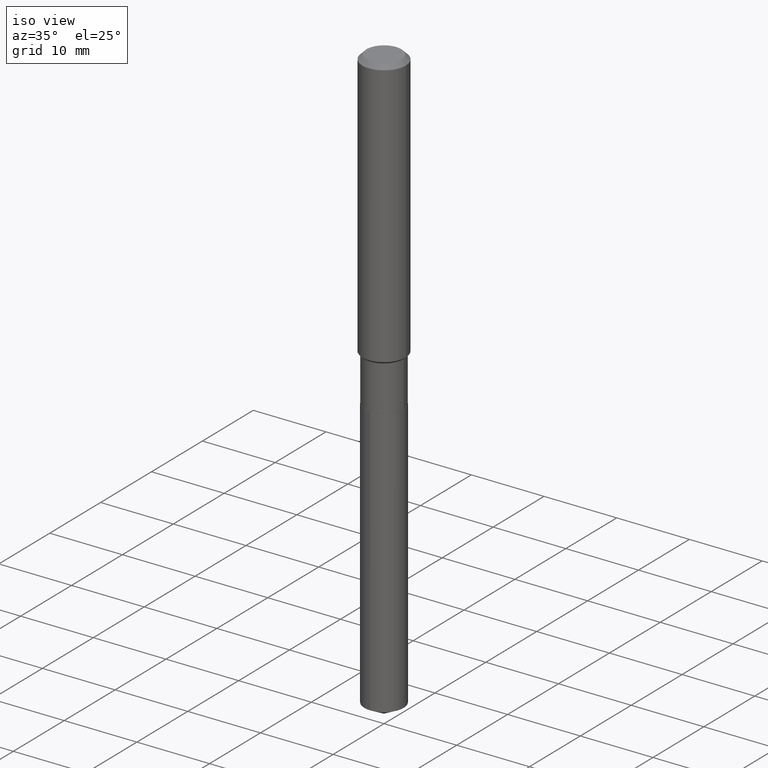
[diagram: clean part render]
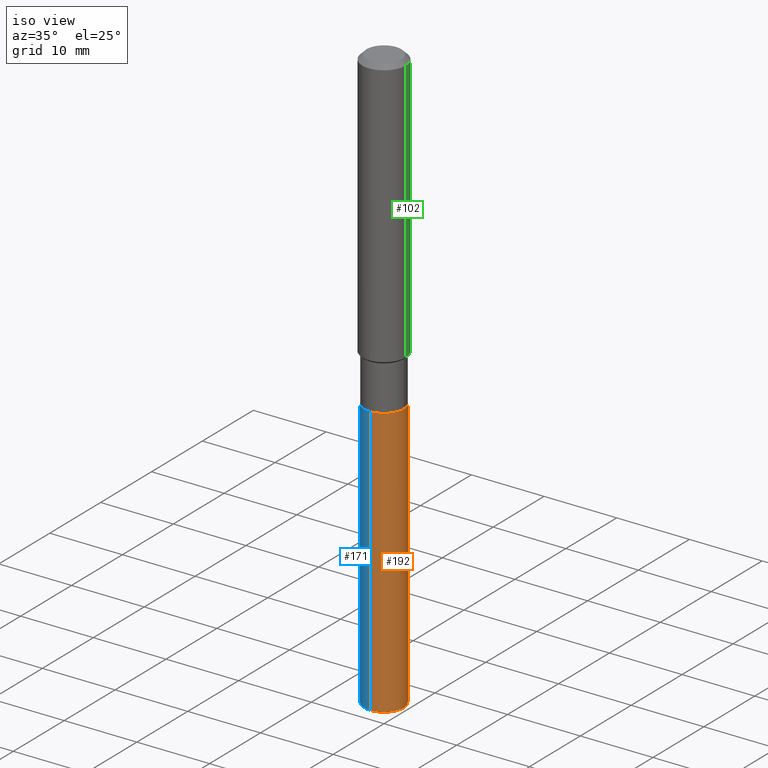
[diagram: same view with three faces highlighted in distinct colors, each labeled with its STEP entity id]
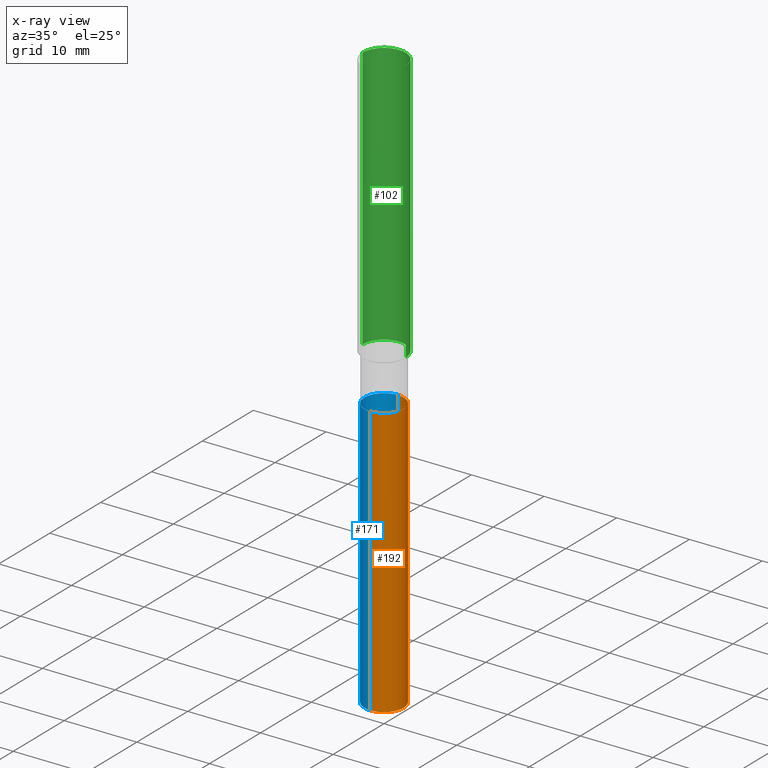
[diagram: x-ray of the same camera — body ghosted, the three highlighted faces saturated]
A machine part, iso view with three faces highlighted in distinct colors.
The next image is the same camera in x-ray (body ghosted, the three faces saturated) — at least one of them is partly hidden behind the body in this view.
Their STEP definitions:

[orange] entity #192 — the highlighted cylindrical surface (edge-blend (fillet) strip) has radius 2.7 mm, axis along (-0, 0, 1).
#26 = CARTESIAN_POINT ( 'NONE',  ( -7.422889326380084277E-16, -0.1063000000000059592, -1.708599999999999897 ) ) ;
#29 = CIRCLE ( 'NONE', #363, 0.1063000000000000056 ) ;
#30 = CARTESIAN_POINT ( 'NONE',  ( 4.178328002247924925E-29, -5.965545015547399442E-15, -1.708600000000000119 ) ) ;
#31 = VERTEX_POINT ( 'NONE', #26 ) ;
#43 = DIRECTION ( 'NONE',  ( -2.445509504775063529E-29, 3.491423056145950316E-15, 1.000000000000000000 ) ) ;
#97 = ORIENTED_EDGE ( 'NONE', *, *, #160, .F. ) ;
#105 = CYLINDRICAL_SURFACE ( 'NONE', #353, 0.1063000000000000056 ) ;
#107 = VERTEX_POINT ( 'NONE', #447 ) ;
#115 = FACE_OUTER_BOUND ( 'NONE', #390, .T. ) ;
#120 = ORIENTED_EDGE ( 'NONE', *, *, #193, .T. ) ;
#148 = CARTESIAN_POINT ( 'NONE',  ( 7.553069281130638457E-16, 0.1062999999999889034, -3.171779287414385973 ) ) ;
#151 = DIRECTION ( 'NONE',  ( -6.982962677686265922E-15, -1.000000000000000000, 2.569941668545873170E-15 ) ) ;
#160 = EDGE_CURVE ( 'NONE', #107, #31, #366, .T. ) ;
#187 = CARTESIAN_POINT ( 'NONE',  ( 7.756546856809809228E-29, -1.107412291490118614E-14, -3.171779287414385529 ) ) ;
#192 = ADVANCED_FACE ( 'NONE', ( #115 ), #105, .T. ) ;
#193 = EDGE_CURVE ( 'NONE', #434, #242, #405, .T. ) ;
#222 = CIRCLE ( 'NONE', #299, 0.1063000000000000056 ) ;
#223 = DIRECTION ( 'NONE',  ( -2.445509504775063809E-29, 3.491423056145949921E-15, 1.000000000000000000 ) ) ;
#242 = VERTEX_POINT ( 'NONE', #457 ) ;
#255 = DIRECTION ( 'NONE',  ( -6.982962677686265922E-15, -1.000000000000000000, 5.139883337091746339E-15 ) ) ;
#258 = CARTESIAN_POINT ( 'NONE',  ( -7.422889326380084277E-16, -0.1063000000000059592, -1.708599999999999897 ) ) ;
#295 = DIRECTION ( 'NONE',  ( -6.982962677686265922E-15, -1.000000000000000000, 2.569941668545873170E-15 ) ) ;
#298 = VECTOR ( 'NONE', #223, 39.37007874015748143 ) ;
#299 = AXIS2_PLACEMENT_3D ( 'NONE', #187, #347, #255 ) ;
#309 = VECTOR ( 'NONE', #345, 39.37007874015748143 ) ;
#345 = DIRECTION ( 'NONE',  ( -2.445509504775063809E-29, 3.491423056145949921E-15, 1.000000000000000000 ) ) ;
#347 = DIRECTION ( 'NONE',  ( -2.445509504775063529E-29, 3.491423056145950316E-15, 1.000000000000000000 ) ) ;
#353 = AXIS2_PLACEMENT_3D ( 'NONE', #30, #484, #295 ) ;
#363 = AXIS2_PLACEMENT_3D ( 'NONE', #411, #43, #151 ) ;
#366 = LINE ( 'NONE', #258, #309 ) ;
#382 = EDGE_CURVE ( 'NONE', #31, #242, #29, .T. ) ;
#390 = EDGE_LOOP ( 'NONE', ( #428, #120, #474, #97 ) ) ;
#405 = LINE ( 'NONE', #413, #298 ) ;
#411 = CARTESIAN_POINT ( 'NONE',  ( 4.178328002247924925E-29, -5.965545015547399442E-15, -1.708600000000000119 ) ) ;
#413 = CARTESIAN_POINT ( 'NONE',  ( 7.553069281130281498E-16, 0.1062999999999940520, -1.708600000000000563 ) ) ;
#428 = ORIENTED_EDGE ( 'NONE', *, *, #473, .T. ) ;
#434 = VERTEX_POINT ( 'NONE', #148 ) ;
#447 = CARTESIAN_POINT ( 'NONE',  ( -7.422889326379726331E-16, -0.1063000000000110662, -3.171779287414385085 ) ) ;
#457 = CARTESIAN_POINT ( 'NONE',  ( 7.553069281130643387E-16, 0.1062999999999940659, -1.708600000000000563 ) ) ;
#473 = EDGE_CURVE ( 'NONE', #107, #434, #222, .T. ) ;
#474 = ORIENTED_EDGE ( 'NONE', *, *, #382, .F. ) ;
#484 = DIRECTION ( 'NONE',  ( -2.445509504775063529E-29, 3.491423056145950316E-15, 1.000000000000000000 ) ) ;

[blue] entity #171 — the highlighted cylindrical surface (edge-blend (fillet) strip) has radius 2.7 mm, axis along (-0, 0, 1).
#12 = DIRECTION ( 'NONE',  ( -2.445509504775063529E-29, 3.491423056145950316E-15, 1.000000000000000000 ) ) ;
#13 = AXIS2_PLACEMENT_3D ( 'NONE', #375, #288, #152 ) ;
#26 = CARTESIAN_POINT ( 'NONE',  ( -7.422889326380084277E-16, -0.1063000000000059592, -1.708599999999999897 ) ) ;
#31 = VERTEX_POINT ( 'NONE', #26 ) ;
#54 = ORIENTED_EDGE ( 'NONE', *, *, #311, .F. ) ;
#74 = CARTESIAN_POINT ( 'NONE',  ( 7.756546856809809228E-29, -1.107412291490118614E-14, -3.171779287414385529 ) ) ;
#79 = DIRECTION ( 'NONE',  ( -2.445509504775063529E-29, 3.491423056145950316E-15, 1.000000000000000000 ) ) ;
#107 = VERTEX_POINT ( 'NONE', #447 ) ;
#118 = FACE_OUTER_BOUND ( 'NONE', #208, .T. ) ;
#143 = ORIENTED_EDGE ( 'NONE', *, *, #441, .T. ) ;
#147 = CYLINDRICAL_SURFACE ( 'NONE', #13, 0.1063000000000000056 ) ;
#148 = CARTESIAN_POINT ( 'NONE',  ( 7.553069281130638457E-16, 0.1062999999999889034, -3.171779287414385973 ) ) ;
#152 = DIRECTION ( 'NONE',  ( -6.982962677686265922E-15, -1.000000000000000000, 2.569941668545873170E-15 ) ) ;
#155 = AXIS2_PLACEMENT_3D ( 'NONE', #306, #12, #422 ) ;
#160 = EDGE_CURVE ( 'NONE', #107, #31, #366, .T. ) ;
#171 = ADVANCED_FACE ( 'NONE', ( #118 ), #147, .T. ) ;
#193 = EDGE_CURVE ( 'NONE', #434, #242, #405, .T. ) ;
#208 = EDGE_LOOP ( 'NONE', ( #435, #143, #452, #54 ) ) ;
#223 = DIRECTION ( 'NONE',  ( -2.445509504775063809E-29, 3.491423056145949921E-15, 1.000000000000000000 ) ) ;
#242 = VERTEX_POINT ( 'NONE', #457 ) ;
#258 = CARTESIAN_POINT ( 'NONE',  ( -7.422889326380084277E-16, -0.1063000000000059592, -1.708599999999999897 ) ) ;
#286 = CIRCLE ( 'NONE', #334, 0.1063000000000000056 ) ;
#288 = DIRECTION ( 'NONE',  ( -2.445509504775063529E-29, 3.491423056145950316E-15, 1.000000000000000000 ) ) ;
#298 = VECTOR ( 'NONE', #223, 39.37007874015748143 ) ;
#306 = CARTESIAN_POINT ( 'NONE',  ( 4.178328002247924925E-29, -5.965545015547399442E-15, -1.708600000000000119 ) ) ;
#309 = VECTOR ( 'NONE', #345, 39.37007874015748143 ) ;
#311 = EDGE_CURVE ( 'NONE', #242, #31, #369, .T. ) ;
#334 = AXIS2_PLACEMENT_3D ( 'NONE', #74, #79, #376 ) ;
#345 = DIRECTION ( 'NONE',  ( -2.445509504775063809E-29, 3.491423056145949921E-15, 1.000000000000000000 ) ) ;
#366 = LINE ( 'NONE', #258, #309 ) ;
#369 = CIRCLE ( 'NONE', #155, 0.1063000000000000056 ) ;
#375 = CARTESIAN_POINT ( 'NONE',  ( 4.178328002247924925E-29, -5.965545015547399442E-15, -1.708600000000000119 ) ) ;
#376 = DIRECTION ( 'NONE',  ( -6.982962677686265922E-15, -1.000000000000000000, 5.139883337091746339E-15 ) ) ;
#405 = LINE ( 'NONE', #413, #298 ) ;
#413 = CARTESIAN_POINT ( 'NONE',  ( 7.553069281130281498E-16, 0.1062999999999940520, -1.708600000000000563 ) ) ;
#422 = DIRECTION ( 'NONE',  ( -6.982962677686265922E-15, -1.000000000000000000, 2.569941668545873170E-15 ) ) ;
#434 = VERTEX_POINT ( 'NONE', #148 ) ;
#435 = ORIENTED_EDGE ( 'NONE', *, *, #193, .F. ) ;
#441 = EDGE_CURVE ( 'NONE', #434, #107, #286, .T. ) ;
#447 = CARTESIAN_POINT ( 'NONE',  ( -7.422889326379726331E-16, -0.1063000000000110662, -3.171779287414385085 ) ) ;
#452 = ORIENTED_EDGE ( 'NONE', *, *, #160, .T. ) ;
#457 = CARTESIAN_POINT ( 'NONE',  ( 7.553069281130643387E-16, 0.1062999999999940659, -1.708600000000000563 ) ) ;

[green] entity #102 — the highlighted cylindrical surface (edge-blend (fillet) strip) has radius 2.9997 mm, axis along (-0, 0, 1).
#46 = LINE ( 'NONE', #263, #138 ) ;
#80 = CARTESIAN_POINT ( 'NONE',  ( 5.776197320209327532E-31, -8.246878922347559293E-17, -0.02362000000000014088 ) ) ;
#83 = CARTESIAN_POINT ( 'NONE',  ( 0.1181000000000001632, -5.895366240636649477E-15, -1.452299999999999924 ) ) ;
#96 = CIRCLE ( 'NONE', #357, 0.1180999999999999966 ) ;
#102 = ADVANCED_FACE ( 'NONE', ( #371 ), #214, .T. ) ;
#138 = VECTOR ( 'NONE', #269, 39.37007874015748143 ) ;
#142 = EDGE_CURVE ( 'NONE', #205, #246, #377, .T. ) ;
#184 = ORIENTED_EDGE ( 'NONE', *, *, #275, .F. ) ;
#205 = VERTEX_POINT ( 'NONE', #480 ) ;
#214 = CYLINDRICAL_SURFACE ( 'NONE', #219, 0.1181000000000000799 ) ;
#219 = AXIS2_PLACEMENT_3D ( 'NONE', #487, #294, #328 ) ;
#226 = CARTESIAN_POINT ( 'NONE',  ( 3.551554347222674167E-29, -5.070678348401900425E-15, -1.452299999999999924 ) ) ;
#229 = DIRECTION ( 'NONE',  ( 1.000000000000000000, -6.982962677686266711E-15, 0.000000000000000000 ) ) ;
#233 = CARTESIAN_POINT ( 'NONE',  ( -0.1180999999999999966, -1.737422597880008561E-15, -0.02362000000000014088 ) ) ;
#241 = ORIENTED_EDGE ( 'NONE', *, *, #142, .T. ) ;
#246 = VERTEX_POINT ( 'NONE', #233 ) ;
#248 = AXIS2_PLACEMENT_3D ( 'NONE', #226, #259, #482 ) ;
#257 = CIRCLE ( 'NONE', #248, 0.1181000000000001632 ) ;
#259 = DIRECTION ( 'NONE',  ( -2.445468806185136597E-29, 3.491481338843145583E-15, 1.000000000000000000 ) ) ;
#261 = CARTESIAN_POINT ( 'NONE',  ( -0.1181000000000000799, 8.391509709326788873E-16, -5.809262341591047988E-30 ) ) ;
#263 = CARTESIAN_POINT ( 'NONE',  ( 0.1181000000000000799, -8.246878922347486570E-16, 5.758764772215004644E-30 ) ) ;
#269 = DIRECTION ( 'NONE',  ( -2.445468806185136877E-29, 3.491481338843145188E-15, 1.000000000000000000 ) ) ;
#275 = EDGE_CURVE ( 'NONE', #279, #282, #46, .T. ) ;
#279 = VERTEX_POINT ( 'NONE', #83 ) ;
#282 = VERTEX_POINT ( 'NONE', #417 ) ;
#289 = EDGE_CURVE ( 'NONE', #282, #246, #96, .T. ) ;
#294 = DIRECTION ( 'NONE',  ( -2.445468806185136597E-29, 3.491481338843145583E-15, 1.000000000000000000 ) ) ;
#317 = ORIENTED_EDGE ( 'NONE', *, *, #289, .F. ) ;
#328 = DIRECTION ( 'NONE',  ( 1.000000000000000000, -6.982962677686266711E-15, 4.876176775795936353E-29 ) ) ;
#350 = EDGE_CURVE ( 'NONE', #279, #205, #257, .T. ) ;
#355 = EDGE_LOOP ( 'NONE', ( #414, #241, #317, #184 ) ) ;
#357 = AXIS2_PLACEMENT_3D ( 'NONE', #80, #424, #229 ) ;
#371 = FACE_OUTER_BOUND ( 'NONE', #355, .T. ) ;
#377 = LINE ( 'NONE', #261, #409 ) ;
#409 = VECTOR ( 'NONE', #488, 39.37007874015748143 ) ;
#414 = ORIENTED_EDGE ( 'NONE', *, *, #350, .T. ) ;
#417 = CARTESIAN_POINT ( 'NONE',  ( 0.1180999999999999966, -9.071566814582237199E-16, -0.02362000000000014088 ) ) ;
#424 = DIRECTION ( 'NONE',  ( -2.445468806185136597E-29, 3.491481338843145583E-15, 1.000000000000000000 ) ) ;
#480 = CARTESIAN_POINT ( 'NONE',  ( -0.1181000000000001632, -4.231527377469220651E-15, -1.452299999999999924 ) ) ;
#482 = DIRECTION ( 'NONE',  ( 1.000000000000000000, -6.982962677686270655E-15, 0.000000000000000000 ) ) ;
#487 = CARTESIAN_POINT ( 'NONE',  ( 0.000000000000000000, 0.000000000000000000, 0.000000000000000000 ) ) ;
#488 = DIRECTION ( 'NONE',  ( -2.445468806185136877E-29, 3.491481338843145188E-15, 1.000000000000000000 ) ) ;